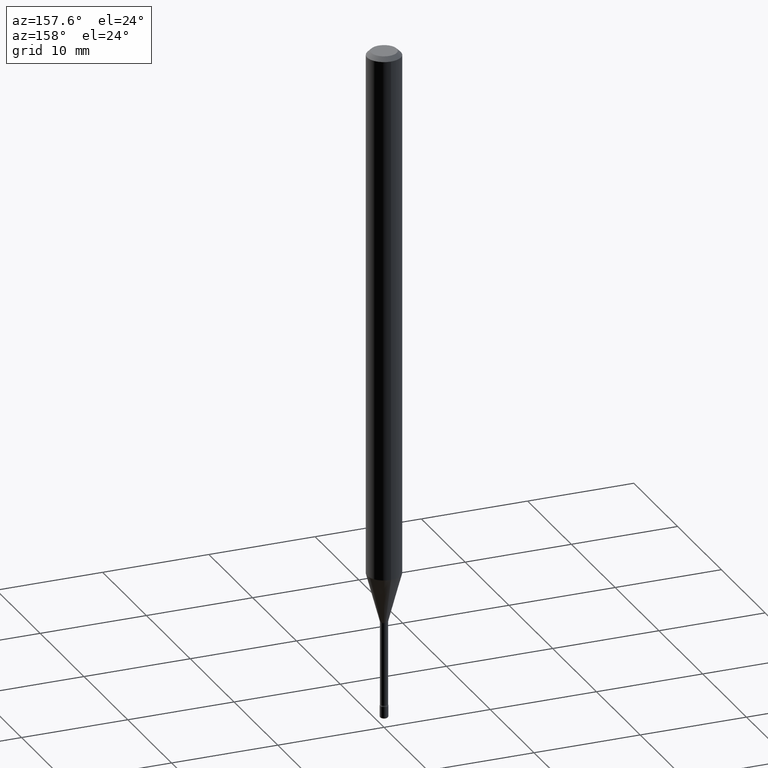
[diagram: clean part render]
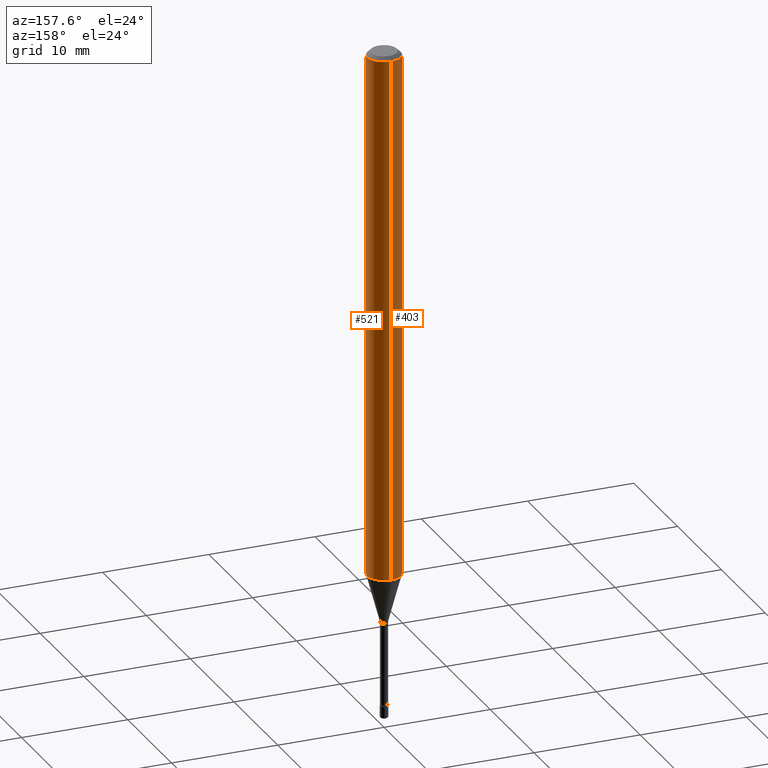
[diagram: same view with one multi-face feature highlighted, each face labeled with its STEP entity id]
A machine part, auxiliary view. The highlighted faces form ONE feature: a constant-radius fillet chain: 2 tangent blend faces with common blend radius 1.5875 mm. The faces share edges in the B-rep.
Their STEP definitions:
[1] entity #403 (Cylinder):
#6 = ORIENTED_EDGE ( 'NONE', *, *, #285, .T. ) ;
#32 = VERTEX_POINT ( 'NONE', #364 ) ;
#64 = AXIS2_PLACEMENT_3D ( 'NONE', #513, #380, #264 ) ;
#73 = VECTOR ( 'NONE', #193, 39.37007874015748143 ) ;
#103 = LINE ( 'NONE', #536, #362 ) ;
#129 = CIRCLE ( 'NONE', #64, 0.06250000000000000000 ) ;
#134 = VERTEX_POINT ( 'NONE', #171 ) ;
#143 = CYLINDRICAL_SURFACE ( 'NONE', #435, 0.06250000000000000000 ) ;
#157 = VERTEX_POINT ( 'NONE', #302 ) ;
#171 = CARTESIAN_POINT ( 'NONE',  ( 4.440892098501102436E-16, 0.06249999999999313743, -1.959368740913667306 ) ) ;
#177 = DIRECTION ( 'NONE',  ( -6.982962677686265922E-15, -1.000000000000000000, 3.491404189108078292E-15 ) ) ;
#180 = DIRECTION ( 'NONE',  ( -2.445522679557193987E-29, 3.491404189108077503E-15, 1.000000000000000000 ) ) ;
#185 = VERTEX_POINT ( 'NONE', #388 ) ;
#193 = DIRECTION ( 'NONE',  ( -2.445522679557193987E-29, 3.491404189108077503E-15, 1.000000000000000000 ) ) ;
#195 = CARTESIAN_POINT ( 'NONE',  ( 4.440892098500625669E-16, 0.06250000000000000000, 2.598606370719912193E-16 ) ) ;
#227 = DIRECTION ( 'NONE',  ( -2.445522679557193987E-29, 3.491404189108077503E-15, 1.000000000000000000 ) ) ;
#232 = DIRECTION ( 'NONE',  ( -6.982962677686265922E-15, -1.000000000000000000, 3.483106191921935554E-15 ) ) ;
#248 = ORIENTED_EDGE ( 'NONE', *, *, #308, .F. ) ;
#264 = DIRECTION ( 'NONE',  ( -6.982962677686265922E-15, -1.000000000000000000, 4.370956789862821150E-15 ) ) ;
#285 = EDGE_CURVE ( 'NONE', #134, #32, #129, .T. ) ;
#300 = EDGE_LOOP ( 'NONE', ( #438, #6, #547, #248 ) ) ;
#302 = CARTESIAN_POINT ( 'NONE',  ( 4.440892098501108353E-16, 0.06249999999999995143, -0.01500000000000024578 ) ) ;
#308 = EDGE_CURVE ( 'NONE', #157, #185, #533, .T. ) ;
#326 = LINE ( 'NONE', #195, #73 ) ;
#359 = DIRECTION ( 'NONE',  ( -2.445522679557193987E-29, 3.491404189108077503E-15, 1.000000000000000000 ) ) ;
#362 = VECTOR ( 'NONE', #359, 39.37007874015748143 ) ;
#364 = CARTESIAN_POINT ( 'NONE',  ( -4.364351673553436475E-16, -0.06250000000000684175, -1.959368740913666640 ) ) ;
#380 = DIRECTION ( 'NONE',  ( -2.445522679557193987E-29, 3.491404189108077503E-15, 1.000000000000000000 ) ) ;
#388 = CARTESIAN_POINT ( 'NONE',  ( -4.364351673553912750E-16, -0.06250000000000005551, -0.01499999999999981036 ) ) ;
#397 = EDGE_CURVE ( 'NONE', #32, #185, #103, .T. ) ;
#402 = FACE_OUTER_BOUND ( 'NONE', #300, .T. ) ;
#403 = ADVANCED_FACE ( 'NONE', ( #402 ), #143, .T. ) ;
#435 = AXIS2_PLACEMENT_3D ( 'NONE', #491, #180, #177 ) ;
#438 = ORIENTED_EDGE ( 'NONE', *, *, #484, .F. ) ;
#443 = AXIS2_PLACEMENT_3D ( 'NONE', #446, #227, #232 ) ;
#446 = CARTESIAN_POINT ( 'NONE',  ( 3.668284019335797619E-31, -5.237106283662126559E-17, -0.01500000000000002720 ) ) ;
#484 = EDGE_CURVE ( 'NONE', #134, #157, #326, .T. ) ;
#491 = CARTESIAN_POINT ( 'NONE',  ( -1.169113584055446105E-44, 1.669184350826100908E-30, 4.780733988912460139E-16 ) ) ;
#513 = CARTESIAN_POINT ( 'NONE',  ( 4.791680693519795909E-29, -6.840948230033396805E-15, -1.959368740913666862 ) ) ;
#533 = CIRCLE ( 'NONE', #443, 0.06250000000000000000 ) ;
#536 = CARTESIAN_POINT ( 'NONE',  ( -4.364351673553916201E-16, -0.06250000000000000000, 6.962861607105009072E-16 ) ) ;
#547 = ORIENTED_EDGE ( 'NONE', *, *, #397, .T. ) ;
[2] entity #521 (Cylinder):
#2 = DIRECTION ( 'NONE',  ( -2.445522679557193987E-29, 3.491404189108077503E-15, 1.000000000000000000 ) ) ;
#15 = CARTESIAN_POINT ( 'NONE',  ( -1.169113584055446105E-44, 1.669184350826100908E-30, 4.780733988912460139E-16 ) ) ;
#32 = VERTEX_POINT ( 'NONE', #364 ) ;
#42 = ORIENTED_EDGE ( 'NONE', *, *, #397, .F. ) ;
#73 = VECTOR ( 'NONE', #193, 39.37007874015748143 ) ;
#87 = ORIENTED_EDGE ( 'NONE', *, *, #484, .T. ) ;
#102 = AXIS2_PLACEMENT_3D ( 'NONE', #15, #150, #546 ) ;
#103 = LINE ( 'NONE', #536, #362 ) ;
#134 = VERTEX_POINT ( 'NONE', #171 ) ;
#148 = ORIENTED_EDGE ( 'NONE', *, *, #334, .F. ) ;
#150 = DIRECTION ( 'NONE',  ( -2.445522679557193987E-29, 3.491404189108077503E-15, 1.000000000000000000 ) ) ;
#157 = VERTEX_POINT ( 'NONE', #302 ) ;
#171 = CARTESIAN_POINT ( 'NONE',  ( 4.440892098501102436E-16, 0.06249999999999313743, -1.959368740913667306 ) ) ;
#185 = VERTEX_POINT ( 'NONE', #388 ) ;
#191 = DIRECTION ( 'NONE',  ( -2.445522679557193987E-29, 3.491404189108077503E-15, 1.000000000000000000 ) ) ;
#193 = DIRECTION ( 'NONE',  ( -2.445522679557193987E-29, 3.491404189108077503E-15, 1.000000000000000000 ) ) ;
#195 = CARTESIAN_POINT ( 'NONE',  ( 4.440892098500625669E-16, 0.06250000000000000000, 2.598606370719912193E-16 ) ) ;
#245 = CIRCLE ( 'NONE', #319, 0.06250000000000000000 ) ;
#302 = CARTESIAN_POINT ( 'NONE',  ( 4.440892098501108353E-16, 0.06249999999999995143, -0.01500000000000024578 ) ) ;
#319 = AXIS2_PLACEMENT_3D ( 'NONE', #439, #2, #489 ) ;
#326 = LINE ( 'NONE', #195, #73 ) ;
#334 = EDGE_CURVE ( 'NONE', #185, #157, #245, .T. ) ;
#359 = DIRECTION ( 'NONE',  ( -2.445522679557193987E-29, 3.491404189108077503E-15, 1.000000000000000000 ) ) ;
#362 = VECTOR ( 'NONE', #359, 39.37007874015748143 ) ;
#364 = CARTESIAN_POINT ( 'NONE',  ( -4.364351673553436475E-16, -0.06250000000000684175, -1.959368740913666640 ) ) ;
#388 = CARTESIAN_POINT ( 'NONE',  ( -4.364351673553912750E-16, -0.06250000000000005551, -0.01499999999999981036 ) ) ;
#397 = EDGE_CURVE ( 'NONE', #32, #185, #103, .T. ) ;
#414 = EDGE_LOOP ( 'NONE', ( #505, #87, #148, #42 ) ) ;
#416 = CIRCLE ( 'NONE', #467, 0.06250000000000000000 ) ;
#439 = CARTESIAN_POINT ( 'NONE',  ( 3.668284019335797619E-31, -5.237106283662126559E-17, -0.01500000000000002720 ) ) ;
#457 = DIRECTION ( 'NONE',  ( -6.982962677686265922E-15, -1.000000000000000000, 4.370956789862821150E-15 ) ) ;
#460 = CYLINDRICAL_SURFACE ( 'NONE', #102, 0.06250000000000000000 ) ;
#467 = AXIS2_PLACEMENT_3D ( 'NONE', #503, #191, #457 ) ;
#484 = EDGE_CURVE ( 'NONE', #134, #157, #326, .T. ) ;
#489 = DIRECTION ( 'NONE',  ( -6.982962677686265922E-15, -1.000000000000000000, 3.483106191921935554E-15 ) ) ;
#503 = CARTESIAN_POINT ( 'NONE',  ( 4.791680693519795909E-29, -6.840948230033396805E-15, -1.959368740913666862 ) ) ;
#505 = ORIENTED_EDGE ( 'NONE', *, *, #544, .T. ) ;
#521 = ADVANCED_FACE ( 'NONE', ( #543 ), #460, .T. ) ;
#536 = CARTESIAN_POINT ( 'NONE',  ( -4.364351673553916201E-16, -0.06250000000000000000, 6.962861607105009072E-16 ) ) ;
#543 = FACE_OUTER_BOUND ( 'NONE', #414, .T. ) ;
#544 = EDGE_CURVE ( 'NONE', #32, #134, #416, .T. ) ;
#546 = DIRECTION ( 'NONE',  ( -6.982962677686265922E-15, -1.000000000000000000, 3.491404189108078292E-15 ) ) ;